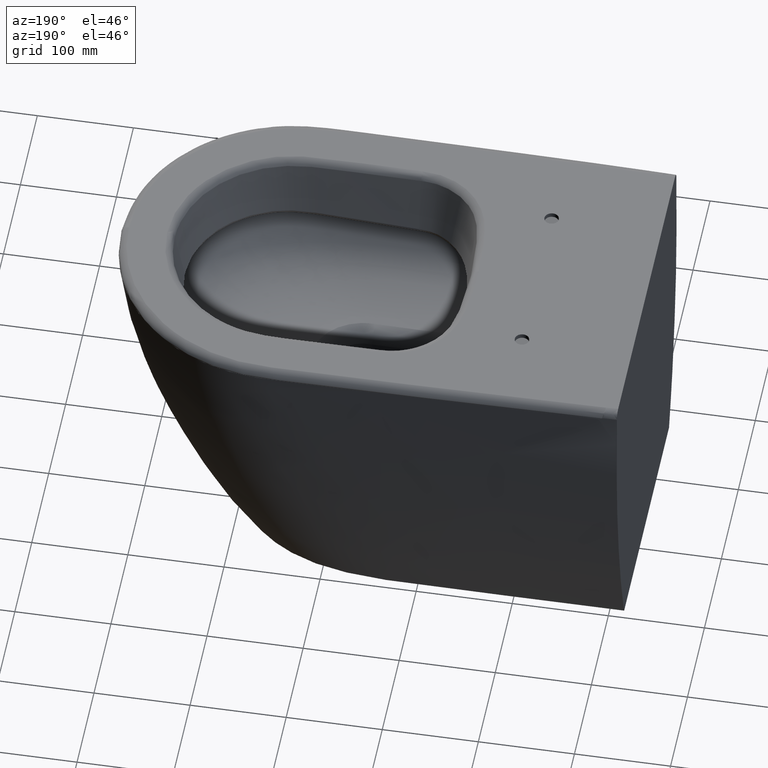
[diagram: clean part render]
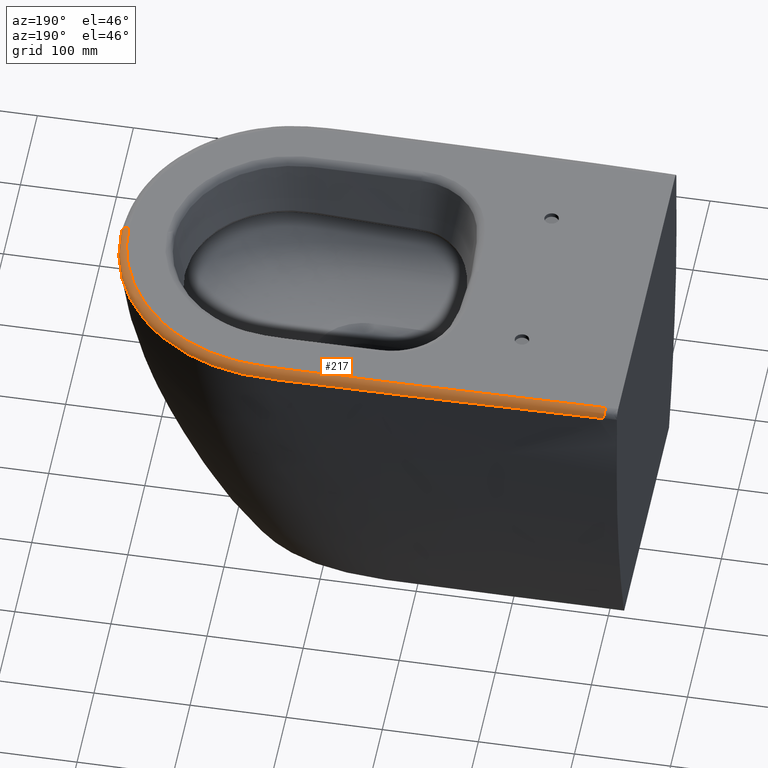
[diagram: same view with one face highlighted and labeled with its STEP entity id]
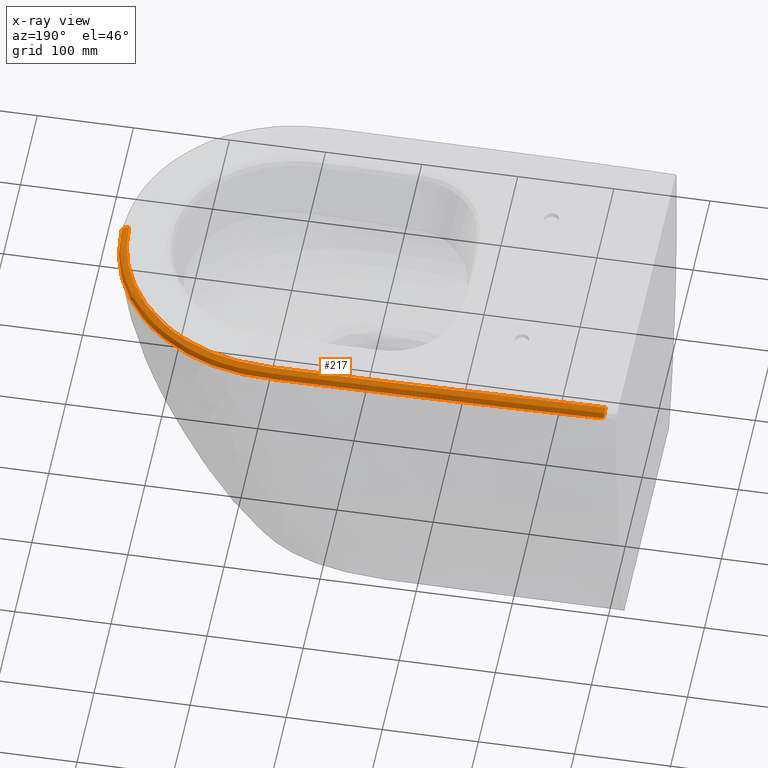
[diagram: x-ray of the same camera — body ghosted, the highlighted face saturated]
A machine part, auxiliary view. The second image highlights one B-rep face of the part: STEP entity #217.
The next image is the same camera in x-ray: the body ghosted, the highlighted face saturated — about 0% of this face is hidden behind the body in this view.
In plain terms, the highlighted face is a freeform B-spline surface patch.
Its self-contained STEP definition (entity closure, byte-faithful):
#148=(
BOUNDED_SURFACE()
B_SPLINE_SURFACE(3,2,((#16940,#16941,#16942),(#16943,#16944,#16945),(#16946,
#16947,#16948),(#16949,#16950,#16951),(#16952,#16953,#16954),(#16955,#16956,
#16957),(#16958,#16959,#16960),(#16961,#16962,#16963),(#16964,#16965,#16966),
(#16967,#16968,#16969),(#16970,#16971,#16972),(#16973,#16974,#16975),(#16976,
#16977,#16978),(#16979,#16980,#16981),(#16982,#16983,#16984),(#16985,#16986,
#16987),(#16988,#16989,#16990),(#16991,#16992,#16993),(#16994,#16995,#16996),
(#16997,#16998,#16999),(#17000,#17001,#17002),(#17003,#17004,#17005),(#17006,
#17007,#17008),(#17009,#17010,#17011),(#17012,#17013,#17014),(#17015,#17016,
#17017),(#17018,#17019,#17020),(#17021,#17022,#17023),(#17024,#17025,#17026),
(#17027,#17028,#17029),(#17030,#17031,#17032),(#17033,#17034,#17035),(#17036,
#17037,#17038),(#17039,#17040,#17041),(#17042,#17043,#17044),(#17045,#17046,
#17047),(#17048,#17049,#17050),(#17051,#17052,#17053)),.UNSPECIFIED.,.F.,
 .F.,.F.)
B_SPLINE_SURFACE_WITH_KNOTS((4,2,2,2,2,2,2,2,2,2,2,2,2,2,2,2,2,2,4),(3,
3),(0.,0.125,0.25,0.375,0.5,0.53125,0.5625,0.59375,0.625,0.6875,0.703125,
0.71875,0.75,0.78125,0.8125,0.875,0.9375,0.96875,1.),(0.,1.),
 .UNSPECIFIED.)
GEOMETRIC_REPRESENTATION_ITEM()
RATIONAL_B_SPLINE_SURFACE(((1.,0.704538817961902,1.),(1.,0.702436089227789,
1.),(1.,0.700497564217883,1.),(1.,0.697213213079843,1.),(1.,0.695985091721212,
1.),(1.,0.693430644256623,1.),(1.,0.691992065422291,1.),(1.,0.687630659310957,
1.),(1.,0.684737220512006,1.),(1.,0.679270460852294,1.),(1.,0.678058808870145,
1.),(1.,0.675369619454114,1.),(1.,0.673693247995193,1.),(1.,0.670107994782055,
1.),(1.,0.668255973150073,1.),(1.,0.66471514558093,1.),(1.,0.663093879865548,
1.),(1.,0.65893019143369,1.),(1.,0.657824829108923,1.),(1.,0.657054814716371,
1.),(1.,0.656932292657178,1.),(1.,0.656753808066626,1.),(1.,0.656697489718648,
1.),(1.,0.656623830813427,1.),(1.,0.65668956240922,1.),(1.,0.657031881729705,
1.),(1.,0.657324130423054,1.),(1.,0.658072327741732,1.),(1.,0.658523351243905,
1.),(1.,0.659977506642881,1.),(1.,0.661085125742002,1.),(1.,0.662745898258911,
1.),(1.,0.663365092387199,1.),(1.,0.663999572821827,1.),(1.,0.664162240250463,
1.),(1.,0.664440799432641,1.),(1.,0.664542509650915,1.),(1.,0.664545405261168,
1.)))
REPRESENTATION_ITEM('')
SURFACE()
);
#217=ADVANCED_FACE('',(#295),#148,.T.);
#295=FACE_OUTER_BOUND('',#374,.T.);
#374=EDGE_LOOP('',(#733,#734,#735,#736,#737,#738,#739,#740,#741));
#733=ORIENTED_EDGE('',*,*,#1074,.T.);
#734=ORIENTED_EDGE('',*,*,#1073,.T.);
#735=ORIENTED_EDGE('',*,*,#1096,.F.);
#736=ORIENTED_EDGE('',*,*,#1095,.F.);
#737=ORIENTED_EDGE('',*,*,#1094,.F.);
#738=ORIENTED_EDGE('',*,*,#997,.T.);
#739=ORIENTED_EDGE('',*,*,#1024,.F.);
#740=ORIENTED_EDGE('',*,*,#1109,.T.);
#741=ORIENTED_EDGE('',*,*,#1075,.T.);
#857=VERTEX_POINT('',#5533);
#858=VERTEX_POINT('',#5614);
#873=VERTEX_POINT('',#7060);
#901=VERTEX_POINT('',#12283);
#902=VERTEX_POINT('',#12288);
#903=VERTEX_POINT('',#12293);
#904=VERTEX_POINT('',#12298);
#915=VERTEX_POINT('',#14886);
#916=VERTEX_POINT('',#14891);
#997=EDGE_CURVE('',#858,#857,#1183,.T.);
#1024=EDGE_CURVE('',#873,#857,#1204,.T.);
#1073=EDGE_CURVE('',#902,#901,#1242,.T.);
#1074=EDGE_CURVE('',#903,#902,#1243,.T.);
#1075=EDGE_CURVE('',#904,#903,#1244,.T.);
#1094=EDGE_CURVE('',#858,#915,#1255,.T.);
#1095=EDGE_CURVE('',#915,#916,#1256,.T.);
#1096=EDGE_CURVE('',#916,#901,#1257,.T.);
#1109=EDGE_CURVE('',#873,#904,#1263,.T.);
#1183=B_SPLINE_CURVE_WITH_KNOTS('',3,(#5534,#5535,#5536,#5537,#5538,#5539,
#5540,#5541,#5542,#5543,#5544,#5545,#5546,#5547,#5548,#5549,#5550,#5551,
#5552,#5553,#5554,#5555,#5556,#5557,#5558,#5559,#5560,#5561,#5562,#5563,
#5564,#5565,#5566,#5567,#5568,#5569,#5570,#5571,#5572,#5573,#5574,#5575,
#5576,#5577,#5578,#5579,#5580,#5581,#5582,#5583,#5584,#5585,#5586,#5587,
#5588,#5589,#5590,#5591,#5592,#5593,#5594,#5595,#5596,#5597,#5598,#5599,
#5600,#5601,#5602,#5603,#5604,#5605,#5606,#5607,#5608,#5609,#5610,#5611,
#5612,#5613),.UNSPECIFIED.,.F.,.F.,(4,1,1,2,2,1,1,1,1,1,2,2,1,1,2,2,1,1,
2,2,1,1,1,1,1,1,2,2,1,1,1,1,1,1,1,2,2,1,1,1,1,2,2,1,1,2,2,2,2,2,2,2,2,2,
4),(0.,0.12500000000004,0.140625000000045,0.142578125000046,0.144531250000046,
0.148437500000048,0.15625000000005,0.18750000000006,0.250000000000081,0.281250000000091,
0.285156250000092,0.287109375000093,0.289062500000093,0.296875000000096,
0.312500000000101,0.375000000000121,0.406250000000131,0.421875000000137,
0.429687500000139,0.437500000000141,0.46875000000015,0.484375000000155,
0.492187500000157,0.496093750000158,0.498046875000159,0.499023437500159,
0.499511718750159,0.500000000000159,0.531250000000156,0.546875000000154,
0.554687500000153,0.558593750000153,0.560546875000153,0.561523437500153,
0.562011718750153,0.562255859375153,0.562500000000153,0.578125000000142,
0.585937500000137,0.589843750000134,0.591796875000133,0.592773437500132,
0.593750000000132,0.609375000000126,0.617187500000123,0.621093750000122,
0.625000000000121,0.65625000000011,0.6875000000001,0.75000000000008,0.81250000000006,
0.87500000000004,0.90625000000003,0.93750000000002,1.),.UNSPECIFIED.);
#1204=B_SPLINE_CURVE_WITH_KNOTS('',3,(#8022,#8023,#8024,#8025,#8026,#8027,
#8028,#8029,#8030,#8031),.UNSPECIFIED.,.F.,.F.,(4,2,2,2,4),(0.,0.25,0.5,
0.75,1.),.UNSPECIFIED.);
#1242=B_SPLINE_CURVE_WITH_KNOTS('',3,(#12284,#12285,#12286,#12287),
 .UNSPECIFIED.,.F.,.F.,(4,4),(0.,1.),.UNSPECIFIED.);
#1243=B_SPLINE_CURVE_WITH_KNOTS('',3,(#12289,#12290,#12291,#12292),
 .UNSPECIFIED.,.F.,.F.,(4,4),(0.,1.),.UNSPECIFIED.);
#1244=B_SPLINE_CURVE_WITH_KNOTS('',3,(#12294,#12295,#12296,#12297),
 .UNSPECIFIED.,.F.,.F.,(4,4),(0.,1.),.UNSPECIFIED.);
#1255=B_SPLINE_CURVE_WITH_KNOTS('',3,(#14874,#14875,#14876,#14877,#14878,
#14879,#14880,#14881,#14882,#14883,#14884,#14885),.UNSPECIFIED.,.F.,.F.,
(4,2,2,2,2,4),(0.,0.250000000000011,0.375000000000011,0.437500000000011,
0.500000000000011,1.),.UNSPECIFIED.);
#1256=B_SPLINE_CURVE_WITH_KNOTS('',3,(#14887,#14888,#14889,#14890),
 .UNSPECIFIED.,.F.,.F.,(4,4),(0.,1.),.UNSPECIFIED.);
#1257=B_SPLINE_CURVE_WITH_KNOTS('',3,(#14892,#14893,#14894,#14895),
 .UNSPECIFIED.,.F.,.F.,(4,4),(0.,1.),.UNSPECIFIED.);
#1263=B_SPLINE_CURVE_WITH_KNOTS('',3,(#16006,#16007,#16008,#16009,#16010,
#16011,#16012,#16013,#16014,#16015,#16016,#16017,#16018,#16019,#16020,#16021,
#16022,#16023,#16024,#16025,#16026,#16027,#16028,#16029,#16030,#16031,#16032,
#16033,#16034,#16035,#16036,#16037),.UNSPECIFIED.,.F.,.F.,(4,2,2,2,2,2,
2,2,2,2,2,2,2,2,2,4),(0.,0.0625,0.125,0.1875,0.25,0.28125,0.3125,0.374999999999999,
0.406249999999999,0.437499999999999,0.468749999999999,0.499999999999999,
0.624999999999999,0.749999999999999,0.875,1.),.UNSPECIFIED.);
#5533=CARTESIAN_POINT('',(516.410592591058,0.,12.6970186614985));
#5534=CARTESIAN_POINT('',(-9.23037300907631,168.084314663583,12.6970186615808));
#5535=CARTESIAN_POINT('',(16.593830145056,168.762892425115,12.6970186615808));
#5536=CARTESIAN_POINT('',(45.7786106306597,169.362787434222,12.6970186615807));
#5537=CARTESIAN_POINT('',(75.5199273430489,169.784516459064,12.6970186615807));
#5538=CARTESIAN_POINT('',(79.18899503444,169.833636337581,12.6970186615807));
#5539=CARTESIAN_POINT('',(80.0044009415274,169.844480900441,12.6970186615807));
#5540=CARTESIAN_POINT('',(80.2381821935737,169.847563001924,12.6970186615807));
#5541=CARTESIAN_POINT('',(81.1355296089433,169.859336557661,12.6970186615807));
#5542=CARTESIAN_POINT('',(82.9481176887742,169.882798627952,12.6970186615807));
#5543=CARTESIAN_POINT('',(89.791099721498,169.967890766,12.6970186615807));
#5544=CARTESIAN_POINT('',(107.516169144378,170.161647401847,12.6970186615807));
#5545=CARTESIAN_POINT('',(133.91231097081,170.378346564527,12.6970186615806));
#5546=CARTESIAN_POINT('',(158.112946591072,170.53063454867,12.6970186615806));
#5547=CARTESIAN_POINT('',(167.308293139846,170.583162111006,12.6970186615806));
#5548=CARTESIAN_POINT('',(168.849797522521,170.591874184138,12.6970186615806));
#5549=CARTESIAN_POINT('',(169.240331612228,170.594069512213,12.6970186615806));
#5550=CARTESIAN_POINT('',(170.051585931557,170.598638873248,12.6970186615806));
#5551=CARTESIAN_POINT('',(172.079721745553,170.610059463932,12.6970186615806));
#5552=CARTESIAN_POINT('',(177.352875065683,170.639716444987,12.6970186615806));
#5553=CARTESIAN_POINT('',(182.220401658707,170.667011137027,12.6970186615806));
#5554=CARTESIAN_POINT('',(198.445491305155,170.757813482094,12.6970186615805));
#5555=CARTESIAN_POINT('',(211.425553525001,170.828909676952,12.6970186615805));
#5556=CARTESIAN_POINT('',(230.895694748335,170.937735960002,12.6970186615805));
#5557=CARTESIAN_POINT('',(240.630745113847,170.995413274306,12.6970186615805));
#5558=CARTESIAN_POINT('',(251.988268442838,171.068415776688,12.6970186615805));
#5559=CARTESIAN_POINT('',(256.85577084867,171.100926628216,12.6970186615805));
#5560=CARTESIAN_POINT('',(260.100770765377,171.122872543632,12.6970186615805));
#5561=CARTESIAN_POINT('',(261.777918771792,171.134527286861,12.6970186615805));
#5562=CARTESIAN_POINT('',(268.961371336042,171.183062121499,12.6970186615804));
#5563=CARTESIAN_POINT('',(278.155381002369,171.235012289476,12.6970186615804));
#5564=CARTESIAN_POINT('',(289.88599214423,171.284610460004,12.6970186615804));
#5565=CARTESIAN_POINT('',(296.002364347947,171.306656955574,12.6970186615804));
#5566=CARTESIAN_POINT('',(299.123317108002,171.316992055935,12.6970186615804));
#5567=CARTESIAN_POINT('',(300.699485152579,171.321987569259,12.6970186615804));
#5568=CARTESIAN_POINT('',(301.491492091004,171.324442316708,12.6970186615804));
#5569=CARTESIAN_POINT('',(301.831764260931,171.325485135068,12.6970186615804));
#5570=CARTESIAN_POINT('',(302.058799179745,171.326178299251,12.6970186615804));
#5571=CARTESIAN_POINT('',(302.135824085386,171.326412998612,12.6970186615804));
#5572=CARTESIAN_POINT('',(311.904688480854,171.356013526389,12.6970186615804));
#5573=CARTESIAN_POINT('',(323.986324235149,171.354271599129,12.6970186615804));
#5574=CARTESIAN_POINT('',(333.975671311761,171.272684998466,12.6970186615804));
#5575=CARTESIAN_POINT('',(337.943871190884,171.212003110086,12.6970186615804));
#5576=CARTESIAN_POINT('',(339.67135271565,171.176690018884,12.6970186615804));
#5577=CARTESIAN_POINT('',(340.470938874334,171.15779043653,12.6970186615803));
#5578=CARTESIAN_POINT('',(340.854693302751,171.148029886165,12.6970186615803));
#5579=CARTESIAN_POINT('',(341.042560854228,171.143071921186,12.6970186615804));
#5580=CARTESIAN_POINT('',(341.122216305705,171.140930431238,12.6970186615803));
#5581=CARTESIAN_POINT('',(341.175129003702,171.139499071758,12.6970186615803));
#5582=CARTESIAN_POINT('',(341.171973749469,171.139589955039,12.6970186615803));
#5583=CARTESIAN_POINT('',(344.797774353171,171.040283472984,12.6970186615803));
#5584=CARTESIAN_POINT('',(349.909593400261,170.825990554861,12.6970186615803));
#5585=CARTESIAN_POINT('',(355.447765599069,170.457638604982,12.6970186615803));
#5586=CARTESIAN_POINT('',(358.110447526106,170.243876743691,12.6970186615803));
#5587=CARTESIAN_POINT('',(359.415187446533,170.129599341459,12.6970186615803));
#5588=CARTESIAN_POINT('',(359.968661474625,170.079038353733,12.6970186615803));
#5589=CARTESIAN_POINT('',(360.336377443681,170.04497881565,12.6970186615803));
#5590=CARTESIAN_POINT('',(360.489428241872,170.03064537179,12.6970186615803));
#5591=CARTESIAN_POINT('',(364.106434879999,169.686320340215,12.6970186615803));
#5592=CARTESIAN_POINT('',(369.075829330499,169.09252246618,12.6970186615803));
#5593=CARTESIAN_POINT('',(374.633762430652,168.211297372368,12.6970186615803));
#5594=CARTESIAN_POINT('',(376.964370810982,167.793244994855,12.6970186615803));
#5595=CARTESIAN_POINT('',(378.506695742689,167.505569080921,12.6970186615803));
#5596=CARTESIAN_POINT('',(379.243988253627,167.362908526811,12.6970186615803));
#5597=CARTESIAN_POINT('',(386.335191195635,165.936616847901,12.6970186615803));
#5598=CARTESIAN_POINT('',(392.552509206629,164.29854133476,12.6970186615803));
#5599=CARTESIAN_POINT('',(404.81519824259,160.28186893359,12.6970186615803));
#5600=CARTESIAN_POINT('',(410.90319392971,157.883610808863,12.6970186615803));
#5601=CARTESIAN_POINT('',(428.653512539114,149.696021792547,12.6970186615802));
#5602=CARTESIAN_POINT('',(439.731126547047,142.974940085764,12.6970186615802));
#5603=CARTESIAN_POINT('',(460.313923948587,127.054247008652,12.6970186615802));
#5604=CARTESIAN_POINT('',(469.619363970084,117.98564981443,12.6970186615802));
#5605=CARTESIAN_POINT('',(486.150208374587,97.7642103502954,12.6970186615802));
#5606=CARTESIAN_POINT('',(493.129468905253,86.9315626895375,12.6970186615801));
#5607=CARTESIAN_POINT('',(501.723916338471,69.488480288415,12.6970186615801));
#5608=CARTESIAN_POINT('',(504.244751323717,63.5342773168459,12.6970186615801));
#5609=CARTESIAN_POINT('',(508.598459642554,51.3461870313174,12.6970186615801));
#5610=CARTESIAN_POINT('',(510.424369823425,45.1421079483573,12.6970186615801));
#5611=CARTESIAN_POINT('',(514.91193680488,25.9314947998964,12.6970186615801));
#5612=CARTESIAN_POINT('',(516.408728157782,13.0186380558284,12.6970186615801));
#5613=CARTESIAN_POINT('',(516.410599542617,2.77555756156289E-14,12.6970186615801));
#5614=CARTESIAN_POINT('',(-9.23036231568804,168.084310632137,12.6967135142564));
#7060=CARTESIAN_POINT('',(524.355818788107,0.,3.67244936077822));
#8022=CARTESIAN_POINT('',(524.355807847142,-0.00152666498983031,3.6724516434581));
#8023=CARTESIAN_POINT('',(524.472170003918,-0.00154175598267626,4.67197072622263));
#8024=CARTESIAN_POINT('',(524.407988156122,-0.0015253381321358,5.78548620574994));
#8025=CARTESIAN_POINT('',(523.766542996161,-0.00140461929872853,7.99490031173321));
#8026=CARTESIAN_POINT('',(523.184174314348,-0.00129948310020841,9.0825490951678));
#8027=CARTESIAN_POINT('',(521.593099645944,-0.00101790389126738,10.8897729755044));
#8028=CARTESIAN_POINT('',(520.591715270245,-0.000842756617533864,11.6010317454527));
#8029=CARTESIAN_POINT('',(518.49428285633,-0.000478764720051274,12.5025727191412));
#8030=CARTESIAN_POINT('',(517.406942597753,-0.000291392845692198,12.6970129684238));
#8031=CARTESIAN_POINT('',(516.41059952506,-0.000120567922952954,12.6970186614512));
#12283=CARTESIAN_POINT('',(-7.68053676776358,176.12413330449,4.83584393224029));
#12284=CARTESIAN_POINT('',(-7.61334321183145,176.128526001442,4.72952513190465));
#12285=CARTESIAN_POINT('',(-7.63575087921406,176.127452449413,4.76488095429346));
#12286=CARTESIAN_POINT('',(-7.65815253467435,176.126147820601,4.80032670577673));
#12287=CARTESIAN_POINT('',(-7.68054807888066,176.124608569324,4.83585843711145));
#12288=CARTESIAN_POINT('',(-7.61334321183139,176.128526001442,4.72952513190308));
#12289=CARTESIAN_POINT('',(-7.01756490625343,176.143986686292,4.72954892514028));
#12290=CARTESIAN_POINT('',(-7.2161579199508,176.138843196801,4.7294689407645));
#12291=CARTESIAN_POINT('',(-7.41475071501025,176.133689633777,4.72946126851022));
#12292=CARTESIAN_POINT('',(-7.6133432118313,176.128526001442,4.72952513189995));
#12293=CARTESIAN_POINT('',(-7.01756490625346,176.143986686292,4.72954892513131));
#12294=CARTESIAN_POINT('',(-6.83787029182538,176.149175962882,4.55228968783466));
#12295=CARTESIAN_POINT('',(-6.89778505728019,176.148086345764,4.61111160044379));
#12296=CARTESIAN_POINT('',(-6.95768342711435,176.146362289532,4.67020395635527));
#12297=CARTESIAN_POINT('',(-7.01756490625699,176.143986686292,4.7295489251349));
#12298=CARTESIAN_POINT('',(-6.83514480361678,176.15069820529,4.54964804489694));
#14874=CARTESIAN_POINT('',(-9.23034135096589,168.084307171322,12.696408487047));
#14875=CARTESIAN_POINT('',(-9.22995968602866,168.683763443376,12.6890523238435));
#14876=CARTESIAN_POINT('',(-9.22599213511443,169.305717642844,12.6146343671564));
#14877=CARTESIAN_POINT('',(-9.21393500944249,170.24491176395,12.3823169058815));
#14878=CARTESIAN_POINT('',(-9.20889552004214,170.558912985757,12.2848131788638));
#14879=CARTESIAN_POINT('',(-9.19968990772014,171.026934821376,12.106591625218));
#14880=CARTESIAN_POINT('',(-9.19634680441613,171.182438941641,12.0418622746518));
#14881=CARTESIAN_POINT('',(-9.1890902166599,171.491634673776,11.9015221680554));
#14882=CARTESIAN_POINT('',(-9.18409575558028,171.684447015971,11.8050766358949));
#14883=CARTESIAN_POINT('',(-9.15593524776967,172.703585393384,11.262314513977));
#14884=CARTESIAN_POINT('',(-9.11501597522838,173.775295971884,10.4736415548575));
#14885=CARTESIAN_POINT('',(-9.04886244907984,174.657378346394,9.19860673124663));
#14886=CARTESIAN_POINT('',(-9.04839256182258,174.672181078775,9.18975522365369));
#14887=CARTESIAN_POINT('',(-9.04753060461825,174.674614316582,9.17359379182808));
#14888=CARTESIAN_POINT('',(-9.04380098658543,174.721382031612,9.10545546881955));
#14889=CARTESIAN_POINT('',(-9.0392856352322,174.766922899539,9.03690270204285));
#14890=CARTESIAN_POINT('',(-9.0339846901652,174.811243501842,8.96798548044523));
#14891=CARTESIAN_POINT('',(-9.03443998108771,174.818879184702,8.97279093881911));
#14892=CARTESIAN_POINT('',(-9.03432612501328,174.811291385051,8.96789682533139));
#14893=CARTESIAN_POINT('',(-8.92910061101268,175.699329169956,7.58694450873539));
#14894=CARTESIAN_POINT('',(-8.47594700230557,176.065398076592,6.11387355440024));
#14895=CARTESIAN_POINT('',(-7.68052333986271,176.123658126495,4.83582888173509));
#16006=CARTESIAN_POINT('',(524.355808086517,8.71982686311862E-7,3.67245182902153));
#16007=CARTESIAN_POINT('',(524.353749031673,13.4989617548538,3.67081003696167));
#16008=CARTESIAN_POINT('',(522.757016959333,27.1720916382563,3.66382198444457));
#16009=CARTESIAN_POINT('',(516.673052592592,53.4074845934826,3.6446522056268));
#16010=CARTESIAN_POINT('',(512.156336808741,66.1990407814985,3.63109867152361));
#16011=CARTESIAN_POINT('',(500.179120709919,90.6594609147355,3.59474599545981));
#16012=CARTESIAN_POINT('',(492.898822601658,101.973021343554,3.57142195022181));
#16013=CARTESIAN_POINT('',(475.881596974338,122.917566663725,3.53135136746233));
#16014=CARTESIAN_POINT('',(466.069155346766,132.549140554701,3.51456163392876));
#16015=CARTESIAN_POINT('',(450.143925827634,144.97203736201,3.50465248426132));
#16016=CARTESIAN_POINT('',(444.614423285032,148.80214086533,3.50350773224828));
#16017=CARTESIAN_POINT('',(433.118876010293,155.85377085481,3.50604568001832));
#16018=CARTESIAN_POINT('',(427.114775388051,159.092065721807,3.50999487286916));
#16019=CARTESIAN_POINT('',(408.644076559331,167.729907597288,3.52977192388575));
#16020=CARTESIAN_POINT('',(395.875518124774,172.018606423019,3.5533181158426));
#16021=CARTESIAN_POINT('',(376.010681972188,176.153181028304,3.64083345281271));
#16022=CARTESIAN_POINT('',(369.282974452748,177.138547070886,3.67496778023251));
#16023=CARTESIAN_POINT('',(355.878778455298,178.490402794604,3.74978578964353));
#16024=CARTESIAN_POINT('',(349.228731369952,178.859116760503,3.78920699862073));
#16025=CARTESIAN_POINT('',(336.036225086723,179.266228863113,3.86597043659552));
#16026=CARTESIAN_POINT('',(329.501507565307,179.304839886119,3.9023837607304));
#16027=CARTESIAN_POINT('',(316.528078073858,179.333745683184,3.96165459723226));
#16028=CARTESIAN_POINT('',(310.055931920028,179.325166495365,3.98774519853326));
#16029=CARTESIAN_POINT('',(277.705978668629,179.240989865634,4.1077064423596));
#16030=CARTESIAN_POINT('',(251.847808690746,179.058224049429,4.17208133338905));
#16031=CARTESIAN_POINT('',(200.151691213743,178.747306451245,4.26982477606369));
#16032=CARTESIAN_POINT('',(174.299882196744,178.626890118407,4.30251680906472));
#16033=CARTESIAN_POINT('',(122.576834695735,178.306261294531,4.3597018084171));
#16034=CARTESIAN_POINT('',(96.6928963677518,178.091765489727,4.38631262494152));
#16035=CARTESIAN_POINT('',(44.9305570867437,177.3370662588,4.45700030205631));
#16036=CARTESIAN_POINT('',(19.0510698444415,176.818646778303,4.49967997149152));
#16037=CARTESIAN_POINT('',(-6.83160798677301,176.149287537687,4.5461424476689));
#16940=CARTESIAN_POINT('',(-12.9684908323351,167.985007447265,12.6970186615808));
#16941=CARTESIAN_POINT('',(-13.1848244261794,176.040315692957,12.6970186615808));
#16942=CARTESIAN_POINT('',(-13.1832559842665,175.981913838446,4.55762384970454));
#16943=CARTESIAN_POINT('',(13.3021267623554,168.69053192278,12.6970186615808));
#16944=CARTESIAN_POINT('',(13.1965901047039,176.796713959675,12.6970186533363));
#16945=CARTESIAN_POINT('',(13.120467019057,176.687983672117,4.5097544533754));
#16946=CARTESIAN_POINT('',(39.5735927598452,169.235392543141,12.6970186615809));
#16947=CARTESIAN_POINT('',(39.4798519053617,177.385220521967,12.6970186627981));
#16948=CARTESIAN_POINT('',(39.4212192834852,177.232691714543,4.465812856483));
#16949=CARTESIAN_POINT('',(92.1179717321367,170.047028436157,12.6970186615808));
#16950=CARTESIAN_POINT('',(92.0823993610439,178.272978396414,12.6970186603579));
#16951=CARTESIAN_POINT('',(92.0232944295077,178.043513971688,4.3916217755612));
#16952=CARTESIAN_POINT('',(118.391068128927,170.279495807296,12.6970186615808));
#16953=CARTESIAN_POINT('',(118.376984542899,178.533296519122,12.6970186627526));
#16954=CARTESIAN_POINT('',(118.33073040097,178.275426010299,4.36398620376086));
#16955=CARTESIAN_POINT('',(170.937934772707,170.615626665808,12.6970186615808));
#16956=CARTESIAN_POINT('',(170.94269243631,178.928417034354,12.6970186604047));
#16957=CARTESIAN_POINT('',(170.895987936184,178.609699249065,4.30662556289836));
#16958=CARTESIAN_POINT('',(197.211604203624,170.738561905038,12.6970186615808));
#16959=CARTESIAN_POINT('',(197.250651960223,179.084841006936,12.6970186586665));
#16960=CARTESIAN_POINT('',(197.169685336378,178.731438184258,4.2743643256059));
#16961=CARTESIAN_POINT('',(249.758572261382,171.055308250325,12.6970186615807));
#16962=CARTESIAN_POINT('',(249.784376890005,179.502790393691,12.6970186645134));
#16963=CARTESIAN_POINT('',(249.704159603358,179.04345170181,4.17711835190214));
#16964=CARTESIAN_POINT('',(276.031880010284,171.247376831556,12.6970186615804));
#16965=CARTESIAN_POINT('',(276.148848800204,179.762738507835,12.6970186581496));
#16966=CARTESIAN_POINT('',(275.984352942652,179.232296076647,4.11271052823818));
#16967=CARTESIAN_POINT('',(308.874250508161,171.346815723422,12.6970186615804));
#16968=CARTESIAN_POINT('',(308.864969154759,179.990094850073,12.697018662445));
#16969=CARTESIAN_POINT('',(308.855938276871,179.322966443941,3.99248797261909));
#16970=CARTESIAN_POINT('',(315.442760926106,171.359761378911,12.6970186615803));
#16971=CARTESIAN_POINT('',(315.448776155481,180.031693611706,12.6970186622063));
#16972=CARTESIAN_POINT('',(315.436351727075,179.333886405786,3.96589850626708));
#16973=CARTESIAN_POINT('',(328.580022566985,171.339624614241,12.6970186615803));
#16974=CARTESIAN_POINT('',(328.626873721316,180.075302995461,12.6970186609517));
#16975=CARTESIAN_POINT('',(328.610869585143,179.308776710193,3.90707627625729));
#16976=CARTESIAN_POINT('',(335.148744051878,171.3122259477,12.6970186615805));
#16977=CARTESIAN_POINT('',(335.273227939874,180.087940354078,12.6970186621663));
#16978=CARTESIAN_POINT('',(335.246222226639,179.278653451043,3.87050357344256));
#16979=CARTESIAN_POINT('',(348.287866357187,170.936433334902,12.6970186615805));
#16980=CARTESIAN_POINT('',(348.703442474749,179.789639026307,12.6970186609916));
#16981=CARTESIAN_POINT('',(348.645656343558,178.887892066546,3.79263904337239));
#16982=CARTESIAN_POINT('',(354.858270068986,170.587486467987,12.6970186615806));
#16983=CARTESIAN_POINT('',(355.481378419626,179.475211721492,12.6970186613555));
#16984=CARTESIAN_POINT('',(355.399875488546,178.526913692567,3.75258086395966));
#16985=CARTESIAN_POINT('',(368.002202587114,169.292248513991,12.6970186615806));
#16986=CARTESIAN_POINT('',(369.170602939033,178.212191391544,12.6970186618068));
#16987=CARTESIAN_POINT('',(369.019878907078,177.176241147934,3.67630093088621));
#16988=CARTESIAN_POINT('',(374.561006232521,168.341497697934,12.6970186615804));
#16989=CARTESIAN_POINT('',(376.049448197015,177.255807759126,12.6970186620214));
#16990=CARTESIAN_POINT('',(375.858777764327,176.18296415295,3.64152883996285));
#16991=CARTESIAN_POINT('',(393.809579944594,164.351165390941,12.6970186615803));
#16992=CARTESIAN_POINT('',(396.438286304876,173.132932998843,12.6970186606925));
#16993=CARTESIAN_POINT('',(396.048007472709,171.986350398753,3.55247388750443));
#16994=CARTESIAN_POINT('',(406.190149423855,160.174657284882,12.6970186615801));
#16995=CARTESIAN_POINT('',(409.467298382661,168.756190182596,12.6970186642854));
#16996=CARTESIAN_POINT('',(409.017253843022,167.606016911471,3.52906919073894));
#16997=CARTESIAN_POINT('',(421.122896318374,153.13182917416,12.69701866158));
#16998=CARTESIAN_POINT('',(425.199374926818,161.357275849227,12.6970186609029));
#16999=CARTESIAN_POINT('',(424.642127616633,160.23429582879,3.51271168432995));
#17000=CARTESIAN_POINT('',(424.082232966361,151.629374422561,12.6970186615802));
#17001=CARTESIAN_POINT('',(428.317961777082,159.77728212026,12.6970186611444));
#17002=CARTESIAN_POINT('',(427.73785438686,158.662172046942,3.5101100416937));
#17003=CARTESIAN_POINT('',(429.869138792564,148.479536240246,12.6970186615802));
#17004=CARTESIAN_POINT('',(434.415158183304,156.463548627657,12.6970186620161));
#17005=CARTESIAN_POINT('',(433.790446498497,155.367128415702,3.50632058437506));
#17006=CARTESIAN_POINT('',(432.706714312814,146.82767912518,12.6970186615803));
#17007=CARTESIAN_POINT('',(437.403609114111,154.725430371596,12.6970186614569));
#17008=CARTESIAN_POINT('',(436.75771605464,153.639567486374,3.5051252053028));
#17009=CARTESIAN_POINT('',(441.055760456581,141.646734923053,12.6970186615803));
#17010=CARTESIAN_POINT('',(446.196124819674,149.271426668202,12.6970186618271));
#17011=CARTESIAN_POINT('',(445.488006647945,148.221791624601,3.50356173705334));
#17012=CARTESIAN_POINT('',(446.404129566615,137.893072074734,12.6970186615803));
#17013=CARTESIAN_POINT('',(451.82817084627,145.317023030425,12.6970186624226));
#17014=CARTESIAN_POINT('',(451.083359865295,144.29523611557,3.50495647387974));
#17015=CARTESIAN_POINT('',(456.657585229367,129.775387129569,12.6970186615802));
#17016=CARTESIAN_POINT('',(462.631146217293,136.753545540804,12.6970186607383));
#17017=CARTESIAN_POINT('',(461.816139952605,135.799338814791,3.51222454859756));
#17018=CARTESIAN_POINT('',(461.563057359977,125.411895934224,12.6970186615801));
#17019=CARTESIAN_POINT('',(467.792940492916,132.152649017074,12.6970186604669));
#17020=CARTESIAN_POINT('',(466.948791360744,131.234742797764,3.51843074113546));
#17021=CARTESIAN_POINT('',(470.922465081028,116.063189325091,12.6970186615801));
#17022=CARTESIAN_POINT('',(477.637498039974,122.293383833787,12.6970186626921));
#17023=CARTESIAN_POINT('',(476.740661485977,121.457097584907,3.53433661962048));
#17024=CARTESIAN_POINT('',(475.316018545162,111.13472679668,12.69701866158));
#17025=CARTESIAN_POINT('',(482.255105341334,117.097649292549,12.6970186629461));
#17026=CARTESIAN_POINT('',(481.336794727369,116.303308796252,3.5439321042633));
#17027=CARTESIAN_POINT('',(487.533160547649,95.7583916688969,12.69701866158));
#17028=CARTESIAN_POINT('',(495.082315856662,100.896282291414,12.697018658854));
#17029=CARTESIAN_POINT('',(494.119417385049,100.221801950446,3.57490745830823));
#17030=CARTESIAN_POINT('',(494.471165143376,84.6708720389629,12.6970186615808));
#17031=CARTESIAN_POINT('',(502.371909364926,89.2048497691802,12.6970186677278));
#17032=CARTESIAN_POINT('',(501.382820103406,88.6214327495452,3.59855974130052));
#17033=CARTESIAN_POINT('',(505.766799514526,60.7068907928018,12.6970186615808));
#17034=CARTESIAN_POINT('',(514.240717571759,63.9299810586921,12.6970186554492));
#17035=CARTESIAN_POINT('',(513.216723646203,63.5257873247309,3.63409237060699));
#17036=CARTESIAN_POINT('',(509.920921176014,48.2739087757413,12.6970186615801));
#17037=CARTESIAN_POINT('',(518.602049628236,50.8346815217677,12.6970186612588));
#17038=CARTESIAN_POINT('',(517.562692252194,50.5208546481484,3.64737125732104));
#17039=CARTESIAN_POINT('',(514.014145812641,29.0716672624237,12.6970186615801));
#17040=CARTESIAN_POINT('',(522.896067217484,30.6165709092533,12.6970186617406));
#17041=CARTESIAN_POINT('',(521.846506733932,30.4322457571458,3.66098452804152));
#17042=CARTESIAN_POINT('',(515.020248407362,22.5647648198007,12.6970186615799));
#17043=CARTESIAN_POINT('',(523.951305444675,23.7679258365237,12.6970186649636));
#17044=CARTESIAN_POINT('',(522.899542297208,23.6250657055562,3.6644766362928));
#17045=CARTESIAN_POINT('',(516.275859424583,9.37789629038619,12.6970186615799));
#17046=CARTESIAN_POINT('',(525.266490297908,9.88411767552001,12.6970186581976));
#17047=CARTESIAN_POINT('',(524.214365536287,9.8237152174549,3.67045795599983));
#17048=CARTESIAN_POINT('',(516.514313991646,2.81255541050137,12.6970186615806));
#17049=CARTESIAN_POINT('',(525.515631665912,2.96625214370379,12.6970186562967));
#17050=CARTESIAN_POINT('',(524.464535063443,2.94830481637593,3.67260318207964));
#17051=CARTESIAN_POINT('',(516.369611645426,-3.72515326544924,12.6970186615806));
#17052=CARTESIAN_POINT('',(525.363006683629,-3.92420853617298,12.6970186615806));
#17053=CARTESIAN_POINT('',(524.312948592867,-3.90096707989931,3.67270505598437));